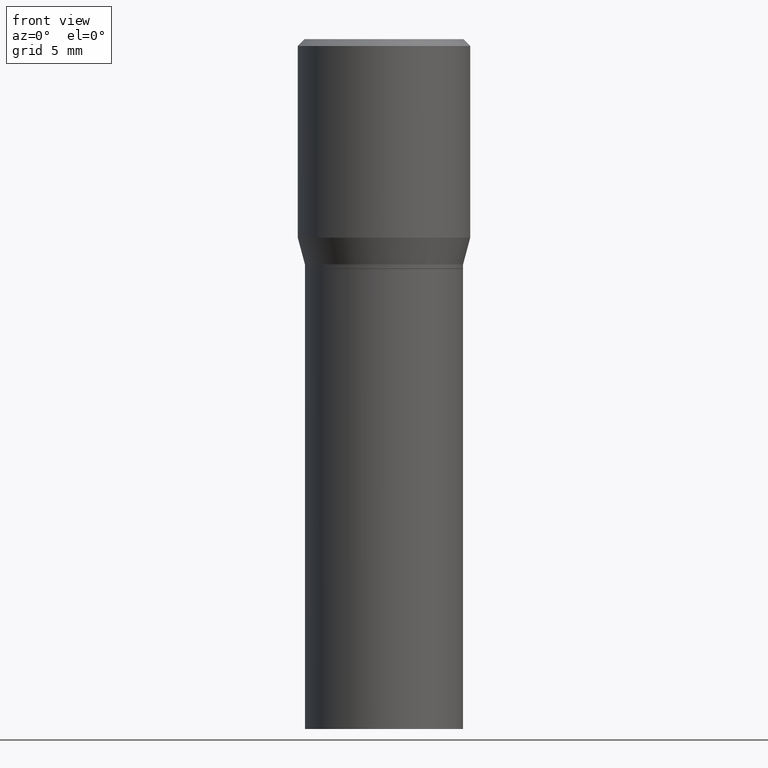
[diagram: clean part render]
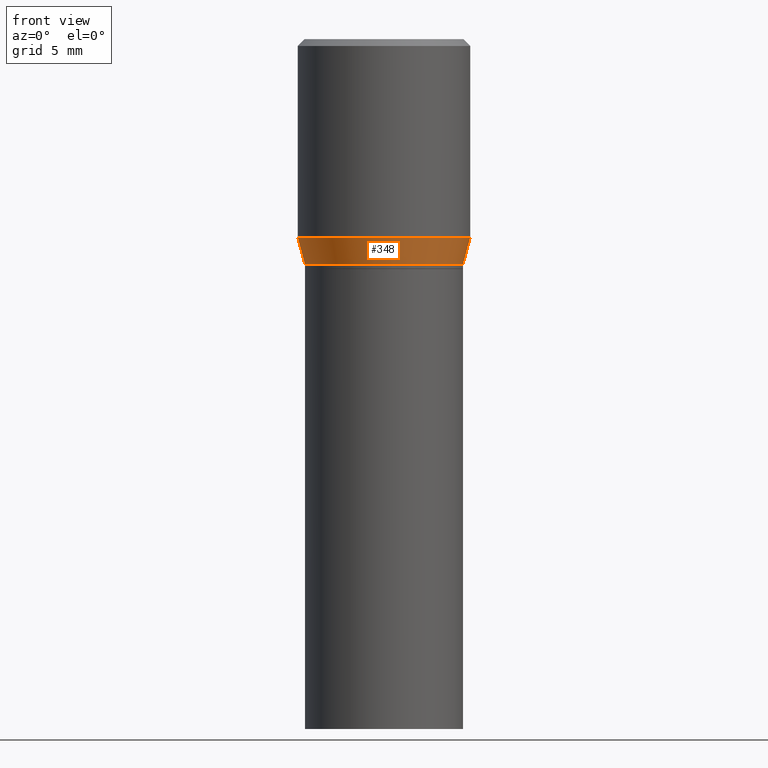
[diagram: same view with one face highlighted and labeled with its STEP entity id]
A machine part, front view. The second image highlights one B-rep face of the part: STEP entity #348.
In plain terms, the highlighted conical surface has half-angle 15 deg.
Its self-contained STEP definition (entity closure, byte-faithful):
#21 = VECTOR ( 'NONE', #302, 39.37007874015748143 ) ;
#37 = EDGE_CURVE ( 'NONE', #352, #407, #404, .T. ) ;
#39 = CARTESIAN_POINT ( 'NONE',  ( 0.1875000000000000278, -2.816857340395553661E-15, -0.4317800074019257361 ) ) ;
#49 = ORIENTED_EDGE ( 'NONE', *, *, #37, .F. ) ;
#84 = CARTESIAN_POINT ( 'NONE',  ( 1.055904539235796751E-29, -1.507551838329378850E-15, -0.4317800074019257361 ) ) ;
#95 = DIRECTION ( 'NONE',  ( -2.445468806185136597E-29, 3.491481338843145583E-15, 1.000000000000000000 ) ) ;
#101 = DIRECTION ( 'NONE',  ( 1.000000000000000000, -6.982962677686266711E-15, 0.000000000000000000 ) ) ;
#125 = VECTOR ( 'NONE', #357, 39.37007874015748143 ) ;
#142 = FACE_OUTER_BOUND ( 'NONE', #215, .T. ) ;
#158 = CARTESIAN_POINT ( 'NONE',  ( 0.1718999999999999695, -2.911197140327410581E-15, -0.4900000000000001021 ) ) ;
#164 = CARTESIAN_POINT ( 'NONE',  ( -0.1718999999999999695, -4.894028932615295339E-16, -0.4900000000000001021 ) ) ;
#169 = VERTEX_POINT ( 'NONE', #158 ) ;
#177 = ORIENTED_EDGE ( 'NONE', *, *, #295, .T. ) ;
#178 = DIRECTION ( 'NONE',  ( 1.000000000000000000, -6.982962677686266711E-15, 0.000000000000000000 ) ) ;
#215 = EDGE_LOOP ( 'NONE', ( #354, #177, #350, #49 ) ) ;
#227 = AXIS2_PLACEMENT_3D ( 'NONE', #466, #95, #101 ) ;
#235 = CARTESIAN_POINT ( 'NONE',  ( 1.198279715030717173E-29, -1.710825856033141537E-15, -0.4900000000000001021 ) ) ;
#237 = EDGE_CURVE ( 'NONE', #425, #352, #455, .T. ) ;
#251 = DIRECTION ( 'NONE',  ( -2.445468806185136597E-29, 3.491481338843145583E-15, 1.000000000000000000 ) ) ;
#295 = EDGE_CURVE ( 'NONE', #425, #169, #317, .T. ) ;
#302 = DIRECTION ( 'NONE',  ( -0.2588190451025216277, 5.211531920934551831E-15, 0.9659258262890679791 ) ) ;
#310 = LINE ( 'NONE', #318, #125 ) ;
#312 = EDGE_CURVE ( 'NONE', #169, #407, #310, .T. ) ;
#313 = CARTESIAN_POINT ( 'NONE',  ( -0.1875000000000000278, -1.752842087791908777E-16, -0.4317800074019257361 ) ) ;
#317 = CIRCLE ( 'NONE', #437, 0.1718999999999999695 ) ;
#318 = CARTESIAN_POINT ( 'NONE',  ( 0.1718999999999999695, -2.911197140327410581E-15, -0.4900000000000001021 ) ) ;
#348 = ADVANCED_FACE ( 'NONE', ( #142 ), #381, .T. ) ;
#350 = ORIENTED_EDGE ( 'NONE', *, *, #312, .T. ) ;
#352 = VERTEX_POINT ( 'NONE', #313 ) ;
#354 = ORIENTED_EDGE ( 'NONE', *, *, #237, .F. ) ;
#357 = DIRECTION ( 'NONE',  ( 0.2588190451025216277, 1.565188264969619995E-15, 0.9659258262890679791 ) ) ;
#360 = DIRECTION ( 'NONE',  ( 1.000000000000000000, -6.982962677686265922E-15, 0.000000000000000000 ) ) ;
#381 = CONICAL_SURFACE ( 'NONE', #227, 0.1718999999999999695, 0.2617993877991502960 ) ;
#387 = CARTESIAN_POINT ( 'NONE',  ( -0.1718999999999999695, -3.323435510203601689E-16, -0.4900000000000001021 ) ) ;
#404 = CIRCLE ( 'NONE', #454, 0.1875000000000000278 ) ;
#407 = VERTEX_POINT ( 'NONE', #39 ) ;
#425 = VERTEX_POINT ( 'NONE', #387 ) ;
#430 = DIRECTION ( 'NONE',  ( -2.445468806185136597E-29, 3.491481338843145583E-15, 1.000000000000000000 ) ) ;
#437 = AXIS2_PLACEMENT_3D ( 'NONE', #235, #430, #178 ) ;
#454 = AXIS2_PLACEMENT_3D ( 'NONE', #84, #251, #360 ) ;
#455 = LINE ( 'NONE', #164, #21 ) ;
#466 = CARTESIAN_POINT ( 'NONE',  ( 1.198279715030717173E-29, -1.710825856033141537E-15, -0.4900000000000001021 ) ) ;